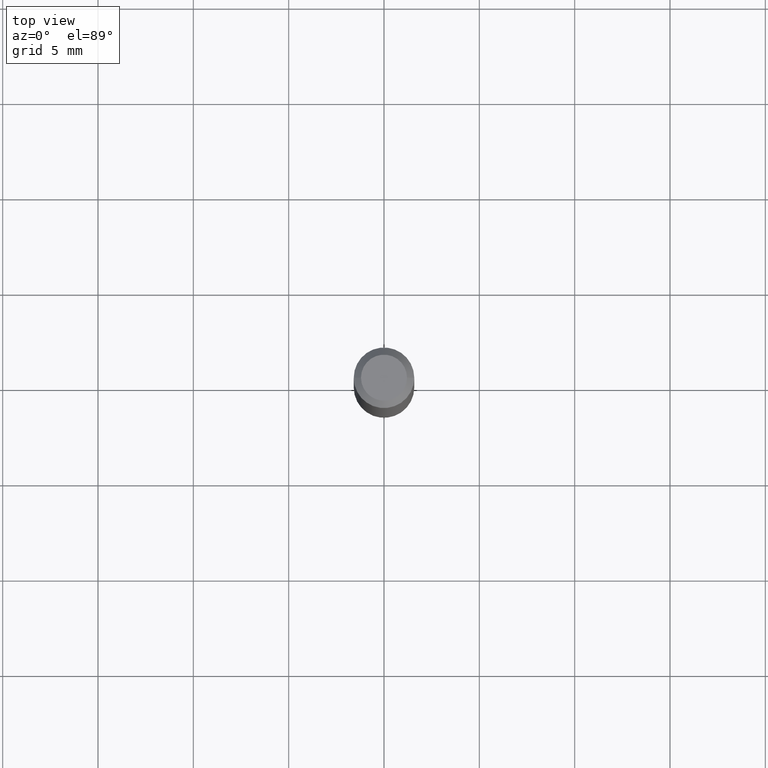
[diagram: clean part render]
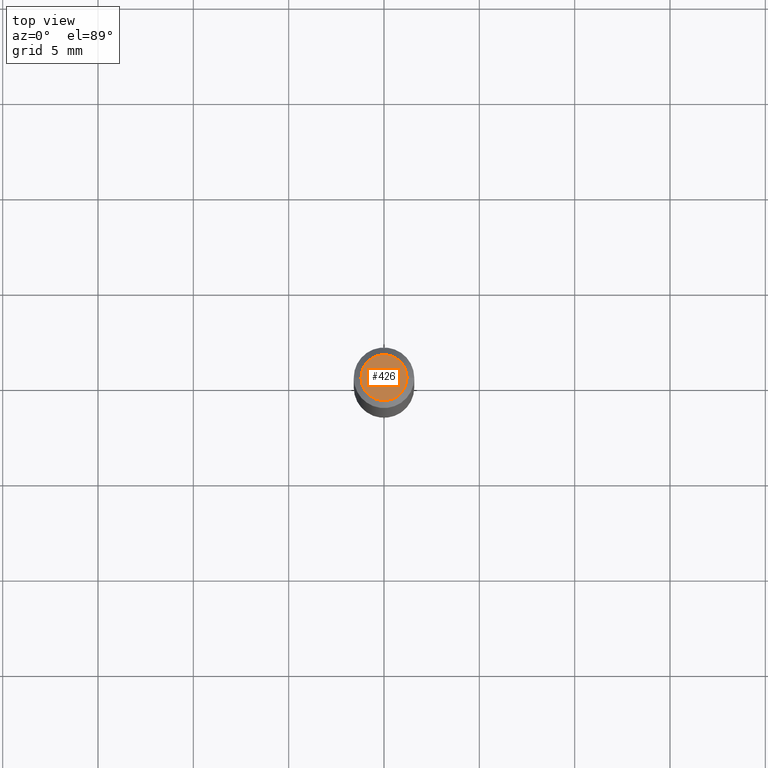
[diagram: same view with one face highlighted and labeled with its STEP entity id]
A machine part, top view. The second image highlights one B-rep face of the part: STEP entity #426.
In plain terms, the highlighted planar face has unit normal (0, -0, -1).
Its self-contained STEP definition (entity closure, byte-faithful):
#12 = ORIENTED_EDGE ( 'NONE', *, *, #142, .T. ) ;
#15 = CARTESIAN_POINT ( 'NONE',  ( -6.680649051745406845E-45, 9.538196290434862081E-31, 2.731847993664263218E-16 ) ) ;
#37 = VERTEX_POINT ( 'NONE', #103 ) ;
#43 = FACE_OUTER_BOUND ( 'NONE', #434, .T. ) ;
#49 = DIRECTION ( 'NONE',  ( -2.445468806185136597E-29, 3.491481338843145583E-15, 1.000000000000000000 ) ) ;
#59 = DIRECTION ( 'NONE',  ( 1.000000000000000000, -6.982962677686266711E-15, 4.852736867747365086E-29 ) ) ;
#60 = VERTEX_POINT ( 'NONE', #395 ) ;
#80 = PLANE ( 'NONE',  #159 ) ;
#103 = CARTESIAN_POINT ( 'NONE',  ( -0.04750000000000000749, 3.578768372314221353E-16, 2.731847993664239060E-16 ) ) ;
#125 = DIRECTION ( 'NONE',  ( -2.445468806185136597E-29, 3.491481338843145583E-15, 1.000000000000000000 ) ) ;
#142 = EDGE_CURVE ( 'NONE', #60, #37, #500, .T. ) ;
#159 = AXIS2_PLACEMENT_3D ( 'NONE', #366, #516, #479 ) ;
#199 = CARTESIAN_POINT ( 'NONE',  ( -6.680649051745406845E-45, 9.538196290434862081E-31, 2.731847993664263218E-16 ) ) ;
#281 = AXIS2_PLACEMENT_3D ( 'NONE', #199, #125, #59 ) ;
#330 = AXIS2_PLACEMENT_3D ( 'NONE', #15, #49, #381 ) ;
#366 = CARTESIAN_POINT ( 'NONE',  ( 3.316907271900976589E-16, 0.04750000000000000749, -2.925296391183627249E-17 ) ) ;
#381 = DIRECTION ( 'NONE',  ( 1.000000000000000000, -6.982962677686266711E-15, 4.852736867747365086E-29 ) ) ;
#395 = CARTESIAN_POINT ( 'NONE',  ( 0.04750000000000000749, -4.035134999187568762E-16, 2.731847993664288856E-16 ) ) ;
#399 = EDGE_CURVE ( 'NONE', #37, #60, #421, .T. ) ;
#421 = CIRCLE ( 'NONE', #330, 0.04750000000000000749 ) ;
#426 = ADVANCED_FACE ( 'NONE', ( #43 ), #80, .F. ) ;
#434 = EDGE_LOOP ( 'NONE', ( #508, #12 ) ) ;
#479 = DIRECTION ( 'NONE',  ( -1.000000000000000000, 6.982962677686265922E-15, -4.876176775795935793E-29 ) ) ;
#500 = CIRCLE ( 'NONE', #281, 0.04750000000000000749 ) ;
#508 = ORIENTED_EDGE ( 'NONE', *, *, #399, .T. ) ;
#516 = DIRECTION ( 'NONE',  ( 2.438088387897960049E-29, -3.491481338843145188E-15, -1.000000000000000000 ) ) ;